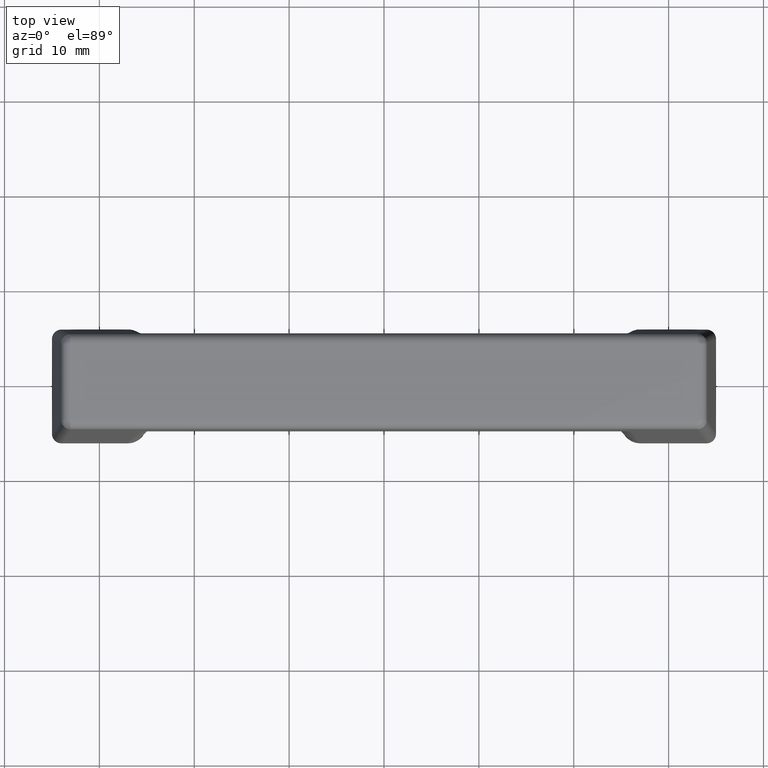
[diagram: clean part render]
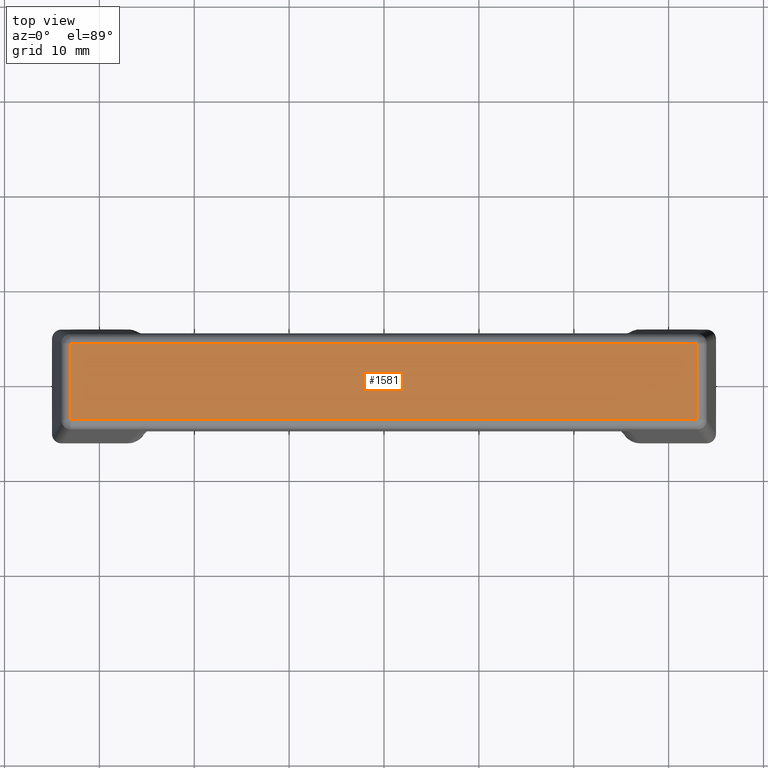
[diagram: same view with one face highlighted and labeled with its STEP entity id]
A machine part, top view. The second image highlights one B-rep face of the part: STEP entity #1581.
In plain terms, the highlighted face is a freeform B-spline surface patch.
Its self-contained STEP definition (entity closure, byte-faithful):
#891=CARTESIAN_POINT('',(-33.032744598317663,-4.032544596117350,30.0));
#892=VERTEX_POINT('',#891);
#939=CARTESIAN_POINT('',(33.032744598317599,-4.032544596117350,30.0));
#940=VERTEX_POINT('',#939);
#954=CARTESIAN_POINT('',(-33.032744598317663,-4.032544596117350,30.0));
#955=CARTESIAN_POINT('',(33.032744598317599,-4.032544596117350,30.0));
#956=QUASI_UNIFORM_CURVE('',1,(#954,#955),.UNSPECIFIED.,.F.,.U.);
#957=EDGE_CURVE('',#892,#940,#956,.T.);
#1154=CARTESIAN_POINT('',(33.032744598317599,4.032544596117241,30.0));
#1155=VERTEX_POINT('',#1154);
#1202=CARTESIAN_POINT('',(-33.032744598317663,4.032544596117241,30.0));
#1203=VERTEX_POINT('',#1202);
#1217=CARTESIAN_POINT('',(33.032744598317599,4.032544596117241,30.0));
#1218=CARTESIAN_POINT('',(-33.032744598317663,4.032544596117241,30.0));
#1219=QUASI_UNIFORM_CURVE('',1,(#1217,#1218),.UNSPECIFIED.,.F.,.U.);
#1220=EDGE_CURVE('',#1155,#1203,#1219,.T.);
#1352=CARTESIAN_POINT('',(-33.032744598317663,4.032544596117241,30.0));
#1353=CARTESIAN_POINT('',(-33.032744598317663,-4.032544596117350,30.0));
#1354=QUASI_UNIFORM_CURVE('',1,(#1352,#1353),.UNSPECIFIED.,.F.,.U.);
#1355=EDGE_CURVE('',#1203,#892,#1354,.T.);
#1375=CARTESIAN_POINT('',(33.032744598317599,-4.032544596117350,30.0));
#1376=CARTESIAN_POINT('',(33.032744598317599,4.032544596117241,30.0));
#1377=QUASI_UNIFORM_CURVE('',1,(#1375,#1376),.UNSPECIFIED.,.F.,.U.);
#1378=EDGE_CURVE('',#940,#1155,#1377,.T.);
#1570=CARTESIAN_POINT('',(36.332716895992881,-4.435395861347048,30.0));
#1571=CARTESIAN_POINT('',(-36.332717486664443,-4.435395861347048,30.0));
#1572=CARTESIAN_POINT('',(36.332716895992881,4.435396005561970,30.0));
#1573=CARTESIAN_POINT('',(-36.332717486664443,4.435396005561970,30.0));
#1574=B_SPLINE_SURFACE_WITH_KNOTS('',1,1,((#1570,#1572),(#1571,#1573)),.UNSPECIFIED.,.F.,.F.,.U.,(2,2),(2,2),(0.0,72.665434382657310),(0.0,8.870791866909018),.UNSPECIFIED.);
#1575=ORIENTED_EDGE('',*,*,#1355,.T.);
#1576=ORIENTED_EDGE('',*,*,#957,.T.);
#1577=ORIENTED_EDGE('',*,*,#1378,.T.);
#1578=ORIENTED_EDGE('',*,*,#1220,.T.);
#1579=EDGE_LOOP('',(#1575,#1576,#1577,#1578));
#1580=FACE_OUTER_BOUND('',#1579,.T.);
#1581=ADVANCED_FACE('',(#1580),#1574,.F.);